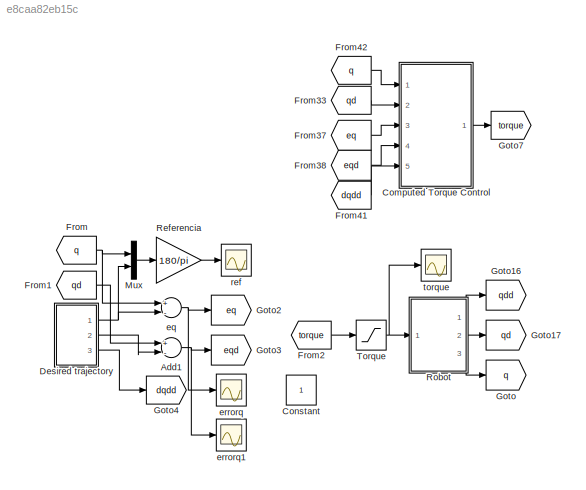
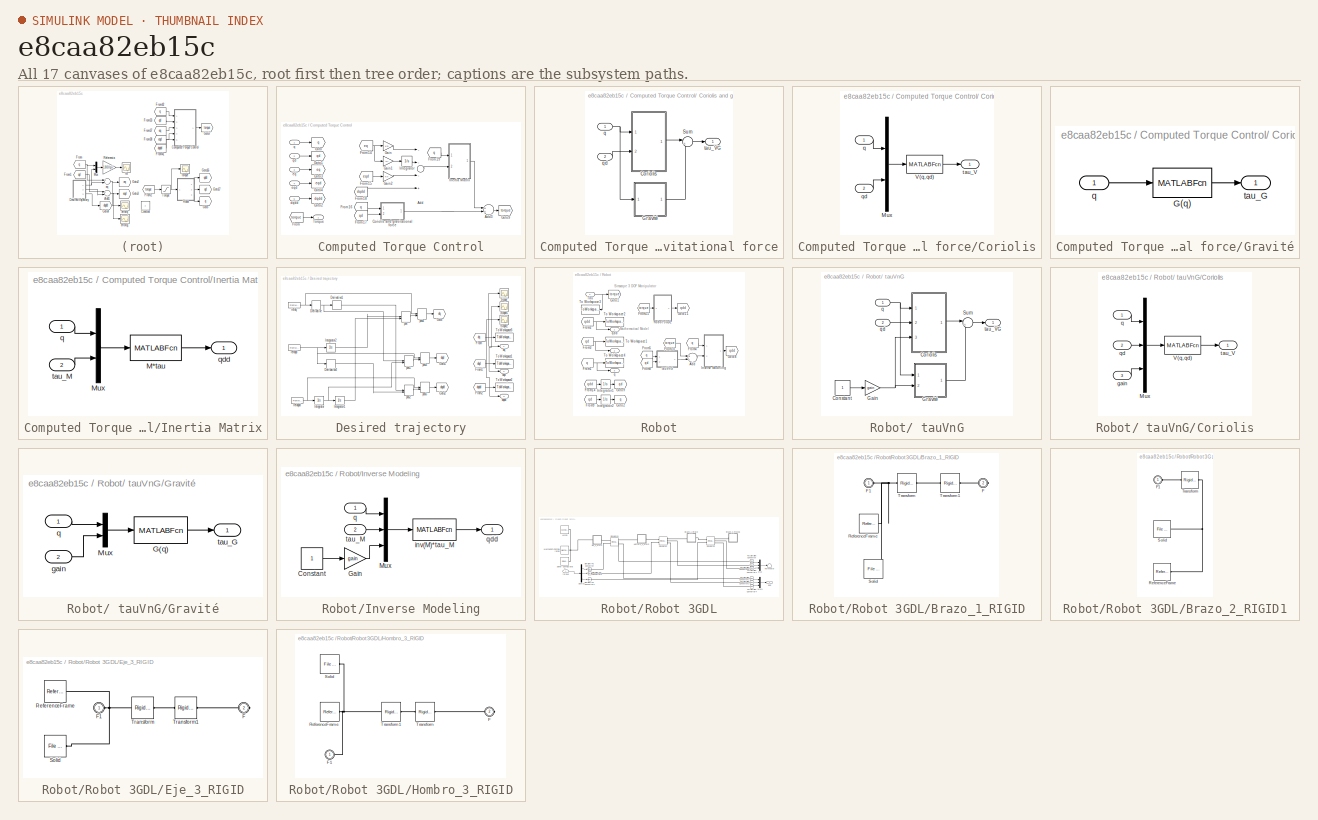
[diagram: thumbnail index - all 17 canvases of the model, root first then tree order]
MODEL slx_e8caa82eb15c
KIND model
CONFIG AbsTol = auto
CONFIG EnableMultiTasking = off
CONFIG FixedStep = Ts
CONFIG MaxStep = auto
CONFIG MinStep = auto
CONFIG RelTol = 1e-3
CONFIG SampleTimeConstraint = Unconstrained
CONFIG Solver = ode3
CONFIG SolverName = ode3
CONFIG StartTime = 0.0
CONFIG StopTime = Tsim
BLOCK [Sum] Add1
  InputSameDT = off
  Inputs = +-
  OutDataTypeStr = Inherit: Inherit via internal rule
  Ports = [2, 1]
  SaturateOnIntegerOverflow = off
BLOCK [SubSystem] Computed Torque Control
  Ports = [5, 1]
  RequestExecContextInheritance = off
BLOCK [SubSystem] Computed Torque Control/ Coriolis and gravitational force
  Ports = [2, 1]
  RequestExecContextInheritance = off
BLOCK [SubSystem] Computed Torque Control/ Coriolis and gravitational force/Coriolis
  Ports = [2, 1]
  RequestExecContextInheritance = off
BLOCK [Mux] Computed Torque Control/ Coriolis and gravitational force/Coriolis/Mux
  DisplayOption = bar
  Inputs = 2
  Ports = [2, 1]
BLOCK [MATLABFcn] Computed Torque Control/ Coriolis and gravitational force/Coriolis/V(q,qd)
  MATLABFcn = feval(Vname,u)
  Ports = [1, 1]
BLOCK [Inport] Computed Torque Control/ Coriolis and gravitational force/Coriolis/q
  IconDisplay = Port number
BLOCK [Inport] Computed Torque Control/ Coriolis and gravitational force/Coriolis/qd
  IconDisplay = Port number
  Port = 2
BLOCK [Outport] Computed Torque Control/ Coriolis and gravitational force/Coriolis/tau_V
  IconDisplay = Port number
  VectorParamsAs1DForOutWhenUnconnected = off
BLOCK [SubSystem] Computed Torque Control/ Coriolis and gravitational force/Gravité
  Ports = [1, 1]
  RequestExecContextInheritance = off
BLOCK [MATLABFcn] Computed Torque Control/ Coriolis and gravitational force/Gravité/G(q)
  MATLABFcn = feval(Gname,u)
  Ports = [1, 1]
BLOCK [Inport] Computed Torque Control/ Coriolis and gravitational force/Gravité/q
  IconDisplay = Port number
BLOCK [Outport] Computed Torque Control/ Coriolis and gravitational force/Gravité/tau_G
  IconDisplay = Port number
  VectorParamsAs1DForOutWhenUnconnected = off
BLOCK [Sum] Computed Torque Control/ Coriolis and gravitational force/Sum
  IconShape = round
  Inputs = |++
  Ports = [2, 1]
BLOCK [Inport] Computed Torque Control/ Coriolis and gravitational force/q
  IconDisplay = Port number
BLOCK [Inport] Computed Torque Control/ Coriolis and gravitational force/qd
  IconDisplay = Port number
  Port = 2
BLOCK [Outport] Computed Torque Control/ Coriolis and gravitational force/tau_VG
  IconDisplay = Port number
  VectorParamsAs1DForOutWhenUnconnected = off
BLOCK [Sum] Computed Torque Control/Add
  InputSameDT = off
  Inputs = ---+
  OutDataTypeStr = Inherit: Inherit via internal rule
  Ports = [4, 1]
  SaturateOnIntegerOverflow = off
BLOCK [Sum] Computed Torque Control/Add3
  InputSameDT = off
  OutDataTypeStr = Inherit: Inherit via internal rule
  Ports = [2, 1]
  SaturateOnIntegerOverflow = off
BLOCK [From] Computed Torque Control/From
  GotoTag = torque
BLOCK [From] Computed Torque Control/From14
  GotoTag = eq
BLOCK [From] Computed Torque Control/From15
  GotoTag = eqd
BLOCK [From] Computed Torque Control/From16
  GotoTag = q
BLOCK [From] Computed Torque Control/From17
  GotoTag = qd
BLOCK [From] Computed Torque Control/From18
  GotoTag = dqdd
BLOCK [From] Computed Torque Control/From19
  GotoTag = q
BLOCK [Gain] Computed Torque Control/Gain
  Gain = Kp
  OutDataTypeStr = Inherit: Inherit via internal rule
  ParamDataTypeStr = Inherit: Inherit via internal rule
  SaturateOnIntegerOverflow = off
BLOCK [Gain] Computed Torque Control/Gain1
  Gain = Ki
  OutDataTypeStr = Inherit: Inherit via internal rule
  ParamDataTypeStr = Inherit: Inherit via internal rule
  SaturateOnIntegerOverflow = off
BLOCK [Gain] Computed Torque Control/Gain2
  Gain = Kv
  OutDataTypeStr = Inherit: Inherit via internal rule
  ParamDataTypeStr = Inherit: Inherit via internal rule
  SaturateOnIntegerOverflow = off
BLOCK [Goto] Computed Torque Control/Goto
  GotoTag = q
BLOCK [Goto] Computed Torque Control/Goto1
  GotoTag = qd
BLOCK [Goto] Computed Torque Control/Goto2
  GotoTag = dqdd
BLOCK [Goto] Computed Torque Control/Goto3
  GotoTag = eq
BLOCK [Goto] Computed Torque Control/Goto4
  GotoTag = eqd
BLOCK [Goto] Computed Torque Control/Goto9
  GotoTag = torque
BLOCK [SubSystem] Computed Torque Control/Inertia Matrix
  Ports = [2, 1]
  RequestExecContextInheritance = off
BLOCK [MATLABFcn] Computed Torque Control/Inertia Matrix/M*tau
  MATLABFcn = feval(Mname,u)
  Ports = [1, 1]
BLOCK [Mux] Computed Torque Control/Inertia Matrix/Mux
  DisplayOption = bar
  Inputs = 2
  Ports = [2, 1]
BLOCK [Inport] Computed Torque Control/Inertia Matrix/q
  IconDisplay = Port number
BLOCK [Outport] Computed Torque Control/Inertia Matrix/qdd
  IconDisplay = Port number
  VectorParamsAs1DForOutWhenUnconnected = off
BLOCK [Inport] Computed Torque Control/Inertia Matrix/tau_M
  IconDisplay = Port number
  Port = 2
BLOCK [Integrator] Computed Torque Control/Integrator
  Ports = [1, 1]
BLOCK [Outport] Computed Torque Control/Torque
  IconDisplay = Port number
BLOCK [Inport] Computed Torque Control/dqdd
  IconDisplay = Port number
  Port = 5
BLOCK [Inport] Computed Torque Control/eq
  IconDisplay = Port number
  Port = 3
BLOCK [Inport] Computed Torque Control/eqd
  IconDisplay = Port number
  Port = 4
BLOCK [Inport] Computed Torque Control/q
  IconDisplay = Port number
BLOCK [Inport] Computed Torque Control/qd
  IconDisplay = Port number
  Port = 2
BLOCK [Constant] Constant
  IOType = siggen
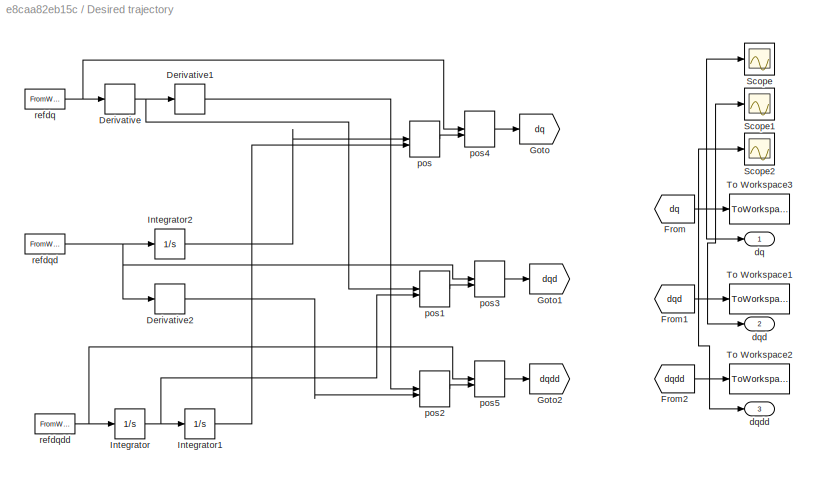
BLOCK [SubSystem] Desired trajectory
  Ports = [0, 3]
  RequestExecContextInheritance = off
BLOCK [Derivative] Desired trajectory/Derivative
BLOCK [Derivative] Desired trajectory/Derivative1
BLOCK [Derivative] Desired trajectory/Derivative2
BLOCK [From] Desired trajectory/From
  GotoTag = dq
BLOCK [From] Desired trajectory/From1
  GotoTag = dqd
BLOCK [From] Desired trajectory/From2
  GotoTag = dqdd
BLOCK [Goto] Desired trajectory/Goto
  GotoTag = dq
BLOCK [Goto] Desired trajectory/Goto1
  GotoTag = dqd
BLOCK [Goto] Desired trajectory/Goto2
  GotoTag = dqdd
BLOCK [Integrator] Desired trajectory/Integrator
  Ports = [1, 1]
BLOCK [Integrator] Desired trajectory/Integrator1
  InitialCondition = q0
  Ports = [1, 1]
BLOCK [Integrator] Desired trajectory/Integrator2
  InitialCondition = q0
  Ports = [1, 1]
BLOCK [Scope] Desired trajectory/Scope
  Floating = off
  NumInputPorts = 1
  Ports = [1]
  ScopeSpecificationString = Simulink.scopes.TimeScopeBlockCfg('CurrentConfiguration', extmgr.ConfigurationSet(extmgr.Configuration('Core','General UI',true),extmgr.Configuration('Core','Source UI',true),extmgr.Configuration('Sources','WiredSimulink',true,'DataLoggingVariableName','ScopeData1'),extmgr.Configuration('Visuals','Time Domain',true,'SerializedDisplays',{struct('MinYLimReal','-2.10343','MaxYLimReal','1.97721','YLab...<+1488ch>
BLOCK [Scope] Desired trajectory/Scope1
  Floating = off
  NumInputPorts = 1
  Ports = [1]
  ScopeSpecificationString = Simulink.scopes.TimeScopeBlockCfg('CurrentConfiguration', extmgr.ConfigurationSet(extmgr.Configuration('Core','General UI',true),extmgr.Configuration('Core','Source UI',true),extmgr.Configuration('Sources','WiredSimulink',true,'DataLoggingVariableName','ScopeData2'),extmgr.Configuration('Visuals','Time Domain',true,'SerializedDisplays',{struct('MinYLimReal','-1.97049','MaxYLimReal','1.47832','YLab...<+1471ch>
BLOCK [Scope] Desired trajectory/Scope2
  Floating = off
  NumInputPorts = 1
  Ports = [1]
  ScopeSpecificationString = Simulink.scopes.TimeScopeBlockCfg('CurrentConfiguration', extmgr.ConfigurationSet(extmgr.Configuration('Core','General UI',true),extmgr.Configuration('Core','Source UI',true),extmgr.Configuration('Sources','WiredSimulink',true,'DataLoggingVariableName','ScopeData3'),extmgr.Configuration('Visuals','Time Domain',true,'SerializedDisplays',{struct('MinYLimReal','-1.97049','MaxYLimReal','1.47832','YLab...<+1517ch>
BLOCK [ToWorkspace] Desired trajectory/To Workspace1
  FixptAsFi = on
  MaxDataPoints = inf
  Ports = [1]
  SampleTime = Tg
  VariableName = dqd
BLOCK [ToWorkspace] Desired trajectory/To Workspace2
  FixptAsFi = on
  MaxDataPoints = inf
  Ports = [1]
  SampleTime = Tg
  VariableName = dqdd
BLOCK [ToWorkspace] Desired trajectory/To Workspace3
  FixptAsFi = on
  MaxDataPoints = inf
  Ports = [1]
  SampleTime = Tg
  VariableName = dq
BLOCK [Outport] Desired trajectory/dq
  IconDisplay = Port number
  VectorParamsAs1DForOutWhenUnconnected = off
BLOCK [Outport] Desired trajectory/dqd
  IconDisplay = Port number
  Port = 2
  VectorParamsAs1DForOutWhenUnconnected = off
BLOCK [Outport] Desired trajectory/dqdd
  IconDisplay = Port number
  Port = 3
  VectorParamsAs1DForOutWhenUnconnected = off
BLOCK [ManualSwitch] Desired trajectory/pos
  CurrentSetting = 0
BLOCK [ManualSwitch] Desired trajectory/pos1
BLOCK [ManualSwitch] Desired trajectory/pos2
BLOCK [ManualSwitch] Desired trajectory/pos3
  CurrentSetting = 0
BLOCK [ManualSwitch] Desired trajectory/pos4
BLOCK [ManualSwitch] Desired trajectory/pos5
  CurrentSetting = 0
BLOCK [FromWorkspace] Desired trajectory/refdq
  SampleTime = 0
  VariableName = dq
  ZeroCross = on
BLOCK [FromWorkspace] Desired trajectory/refdqd
  SampleTime = 0
  VariableName = dqd
  ZeroCross = on
BLOCK [FromWorkspace] Desired trajectory/refdqdd
  SampleTime = 0
  VariableName = dqdd
  ZeroCross = on
BLOCK [From] From
  GotoTag = q
BLOCK [From] From1
  GotoTag = qd
BLOCK [From] From2
  GotoTag = torque
BLOCK [From] From33
  GotoTag = qd
BLOCK [From] From37
  GotoTag = eq
BLOCK [From] From38
  GotoTag = eqd
BLOCK [From] From41
  GotoTag = dqdd
BLOCK [From] From42
  GotoTag = q
BLOCK [Goto] Goto
  GotoTag = q
BLOCK [Goto] Goto16
  GotoTag = qdd
BLOCK [Goto] Goto17
  GotoTag = qd
BLOCK [Goto] Goto2
  GotoTag = eq
BLOCK [Goto] Goto3
  GotoTag = eqd
BLOCK [Goto] Goto4
  GotoTag = dqdd
BLOCK [Goto] Goto7
  GotoTag = torque
BLOCK [Mux] Mux
  DisplayOption = bar
  Inputs = 2
  Ports = [2, 1]
BLOCK [Gain] Referencia
  Gain = 180/pi
  OutDataTypeStr = Inherit: Inherit via internal rule
  ParamDataTypeStr = Inherit: Inherit via internal rule
  SaturateOnIntegerOverflow = off
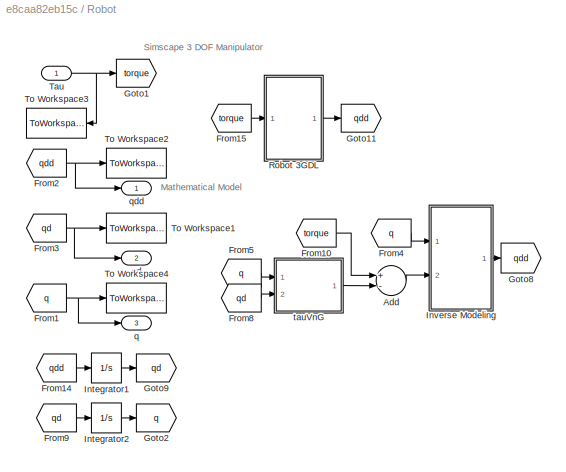
BLOCK [SubSystem] Robot
  Ports = [1, 3]
  RequestExecContextInheritance = off
BLOCK [SubSystem] Robot/ tauVnG
  Commented = on
  Ports = [2, 1]
  RequestExecContextInheritance = off
BLOCK [Constant] Robot/ tauVnG/Constant
BLOCK [SubSystem] Robot/ tauVnG/Coriolis
  Ports = [3, 1]
  RequestExecContextInheritance = off
BLOCK [Mux] Robot/ tauVnG/Coriolis/Mux
  DisplayOption = bar
  Inputs = 3
  Ports = [3, 1]
BLOCK [MATLABFcn] Robot/ tauVnG/Coriolis/V(q,qd)
  MATLABFcn = feval(Vname,u)
  Ports = [1, 1]
BLOCK [Inport] Robot/ tauVnG/Coriolis/gain
  IconDisplay = Port number
  Port = 3
BLOCK [Inport] Robot/ tauVnG/Coriolis/q
  IconDisplay = Port number
BLOCK [Inport] Robot/ tauVnG/Coriolis/qd
  IconDisplay = Port number
  Port = 2
BLOCK [Outport] Robot/ tauVnG/Coriolis/tau_V
  IconDisplay = Port number
  VectorParamsAs1DForOutWhenUnconnected = off
BLOCK [Gain] Robot/ tauVnG/Gain
  Gain = gain
  OutDataTypeStr = Inherit: Inherit via internal rule
  ParamDataTypeStr = Inherit: Inherit via internal rule
  SaturateOnIntegerOverflow = off
BLOCK [SubSystem] Robot/ tauVnG/Gravité
  Ports = [2, 1]
  RequestExecContextInheritance = off
BLOCK [MATLABFcn] Robot/ tauVnG/Gravité/G(q)
  MATLABFcn = feval(Gname,u)
  Ports = [1, 1]
BLOCK [Mux] Robot/ tauVnG/Gravité/Mux
  DisplayOption = bar
  Inputs = 2
  Ports = [2, 1]
BLOCK [Inport] Robot/ tauVnG/Gravité/gain
  IconDisplay = Port number
  Port = 2
BLOCK [Inport] Robot/ tauVnG/Gravité/q
  IconDisplay = Port number
BLOCK [Outport] Robot/ tauVnG/Gravité/tau_G
  IconDisplay = Port number
  VectorParamsAs1DForOutWhenUnconnected = off
BLOCK [Sum] Robot/ tauVnG/Sum
  IconShape = round
  Inputs = |++
  Ports = [2, 1]
BLOCK [Inport] Robot/ tauVnG/q
  IconDisplay = Port number
BLOCK [Inport] Robot/ tauVnG/qd
  IconDisplay = Port number
  Port = 2
BLOCK [Outport] Robot/ tauVnG/tau_VG
  IconDisplay = Port number
  VectorParamsAs1DForOutWhenUnconnected = off
BLOCK [Sum] Robot/Add
  Commented = on
  InputSameDT = off
  Inputs = +-
  OutDataTypeStr = Inherit: Inherit via internal rule
  Ports = [2, 1]
  SaturateOnIntegerOverflow = off
BLOCK [From] Robot/From1
  GotoTag = q
BLOCK [From] Robot/From10
  Commented = on
  GotoTag = torque
BLOCK [From] Robot/From14
  GotoTag = qdd
BLOCK [From] Robot/From15
  GotoTag = torque
BLOCK [From] Robot/From2
  GotoTag = qdd
BLOCK [From] Robot/From3
  GotoTag = qd
BLOCK [From] Robot/From4
  Commented = on
  GotoTag = q
BLOCK [From] Robot/From5
  Commented = on
  GotoTag = q
BLOCK [From] Robot/From8
  Commented = on
  GotoTag = qd
BLOCK [From] Robot/From9
  GotoTag = qd
BLOCK [Goto] Robot/Goto1
  GotoTag = torque
BLOCK [Goto] Robot/Goto11
  GotoTag = qdd
BLOCK [Goto] Robot/Goto2
  GotoTag = q
BLOCK [Goto] Robot/Goto8
  Commented = on
  GotoTag = qdd
BLOCK [Goto] Robot/Goto9
  GotoTag = qd
BLOCK [Integrator] Robot/Integrator1
  InitialCondition = qd0
  Ports = [1, 1]
BLOCK [Integrator] Robot/Integrator2
  InitialCondition = q01
  Ports = [1, 1]
BLOCK [SubSystem] Robot/Inverse Modeling
  Commented = on
  Ports = [2, 1]
  RequestExecContextInheritance = off
BLOCK [Constant] Robot/Inverse Modeling/Constant
BLOCK [Gain] Robot/Inverse Modeling/Gain
  Gain = gain
  OutDataTypeStr = Inherit: Inherit via internal rule
  ParamDataTypeStr = Inherit: Inherit via internal rule
  SaturateOnIntegerOverflow = off
BLOCK [Mux] Robot/Inverse Modeling/Mux
  DisplayOption = bar
  Inputs = 3
  Ports = [3, 1]
BLOCK [MATLABFcn] Robot/Inverse Modeling/inv(M)*tau_M
  MATLABFcn = feval(IMname,u)
  Ports = [1, 1]
BLOCK [Inport] Robot/Inverse Modeling/q
  IconDisplay = Port number
BLOCK [Outport] Robot/Inverse Modeling/qdd
  IconDisplay = Port number
  VectorParamsAs1DForOutWhenUnconnected = off
BLOCK [Inport] Robot/Inverse Modeling/tau_M
  IconDisplay = Port number
  Port = 2
BLOCK [SubSystem] Robot/Robot 3GDL
  Ports = [1, 1]
  RequestExecContextInheritance = off
BLOCK [SubSystem] Robot/Robot 3GDL/Brazo_1_RIGID
  Ports = [0, 0, 0, 0, 0, 1, 1]
  RequestExecContextInheritance = off
BLOCK [PMIOPort] Robot/Robot 3GDL/Brazo_1_RIGID/F
  Port = 2
  Side = Right
BLOCK [PMIOPort] Robot/Robot 3GDL/Brazo_1_RIGID/F1
  Side = Left
BLOCK [Reference] Robot/Robot 3GDL/Brazo_1_RIGID/ReferenceFrame  REF=sm_lib/Frames and
Transforms/Reference
Frame
  Ports = [0, 0, 0, 0, 0, 0, 1]
  SourceBlock = sm_lib/Frames and\nTransforms/Reference\nFrame
  SourceProductBaseCode = MS
  SourceProductName = Simscape Multibody
  SourceType = Reference\nFrame
BLOCK [Reference] Robot/Robot 3GDL/Brazo_1_RIGID/Solid  REF=sm_lib/Body Elements/File Solid
  Ports = [0, 0, 0, 0, 0, 0, 1]
  SourceBlock = sm_lib/Body Elements/File Solid
  SourceProductBaseCode = MS
  SourceProductName = Simscape Multibody
  SourceType = File Solid
BLOCK [Reference] Robot/Robot 3GDL/Brazo_1_RIGID/Transform  REF=sm_lib/Frames and
Transforms/Rigid
Transform
  Ports = [0, 0, 0, 0, 0, 1, 1]
  SourceBlock = sm_lib/Frames and\nTransforms/Rigid\nTransform
  SourceProductBaseCode = MS
  SourceProductName = Simscape Multibody
  SourceType = Rigid\nTransform
BLOCK [Reference] Robot/Robot 3GDL/Brazo_1_RIGID/Transform1  REF=sm_lib/Frames and
Transforms/Rigid
Transform
  Ports = [0, 0, 0, 0, 0, 1, 1]
  SourceBlock = sm_lib/Frames and\nTransforms/Rigid\nTransform
  SourceProductBaseCode = MS
  SourceProductName = Simscape Multibody
  SourceType = Rigid\nTransform
BLOCK [SubSystem] Robot/Robot 3GDL/Brazo_2_RIGID1
  Ports = [0, 0, 0, 0, 0, 1]
  RequestExecContextInheritance = off
BLOCK [PMIOPort] Robot/Robot 3GDL/Brazo_2_RIGID1/F1
  Side = Left
BLOCK [Reference] Robot/Robot 3GDL/Brazo_2_RIGID1/ReferenceFrame  REF=sm_lib/Frames and
Transforms/Reference
Frame
  Ports = [0, 0, 0, 0, 0, 0, 1]
  SourceBlock = sm_lib/Frames and\nTransforms/Reference\nFrame
  SourceProductBaseCode = MS
  SourceProductName = Simscape Multibody
  SourceType = Reference\nFrame
BLOCK [Reference] Robot/Robot 3GDL/Brazo_2_RIGID1/Solid  REF=sm_lib/Body Elements/File Solid
  Ports = [0, 0, 0, 0, 0, 0, 1]
  SourceBlock = sm_lib/Body Elements/File Solid
  SourceProductBaseCode = MS
  SourceProductName = Simscape Multibody
  SourceType = File Solid
BLOCK [Reference] Robot/Robot 3GDL/Brazo_2_RIGID1/Transform  REF=sm_lib/Frames and
Transforms/Rigid
Transform
  Ports = [0, 0, 0, 0, 0, 1, 1]
  SourceBlock = sm_lib/Frames and\nTransforms/Rigid\nTransform
  SourceProductBaseCode = MS
  SourceProductName = Simscape Multibody
  SourceType = Rigid\nTransform
BLOCK [Demux] Robot/Robot 3GDL/Demux
  DisplayOption = bar
  Outputs = 3
  Ports = [1, 3]
BLOCK [SubSystem] Robot/Robot 3GDL/Eje_3_RIGID
  Ports = [0, 0, 0, 0, 0, 1, 1]
  RequestExecContextInheritance = off
BLOCK [PMIOPort] Robot/Robot 3GDL/Eje_3_RIGID/F
  Port = 2
  Side = Right
BLOCK [PMIOPort] Robot/Robot 3GDL/Eje_3_RIGID/F1
  Side = Left
BLOCK [Reference] Robot/Robot 3GDL/Eje_3_RIGID/ReferenceFrame  REF=sm_lib/Frames and
Transforms/Reference
Frame
  Ports = [0, 0, 0, 0, 0, 0, 1]
  SourceBlock = sm_lib/Frames and\nTransforms/Reference\nFrame
  SourceProductBaseCode = MS
  SourceProductName = Simscape Multibody
  SourceType = Reference\nFrame
BLOCK [Reference] Robot/Robot 3GDL/Eje_3_RIGID/Solid  REF=sm_lib/Body Elements/File Solid
  Ports = [0, 0, 0, 0, 0, 0, 1]
  SourceBlock = sm_lib/Body Elements/File Solid
  SourceProductBaseCode = MS
  SourceProductName = Simscape Multibody
  SourceType = File Solid
BLOCK [Reference] Robot/Robot 3GDL/Eje_3_RIGID/Transform  REF=sm_lib/Frames and
Transforms/Rigid
Transform
  Ports = [0, 0, 0, 0, 0, 1, 1]
  SourceBlock = sm_lib/Frames and\nTransforms/Rigid\nTransform
  SourceProductBaseCode = MS
  SourceProductName = Simscape Multibody
  SourceType = Rigid\nTransform
BLOCK [Reference] Robot/Robot 3GDL/Eje_3_RIGID/Transform1  REF=sm_lib/Frames and
Transforms/Rigid
Transform
  Ports = [0, 0, 0, 0, 0, 1, 1]
  SourceBlock = sm_lib/Frames and\nTransforms/Rigid\nTransform
  SourceProductBaseCode = MS
  SourceProductName = Simscape Multibody
  SourceType = Rigid\nTransform
BLOCK [SubSystem] Robot/Robot 3GDL/Hombro_3_RIGID
  Ports = [0, 0, 0, 0, 0, 1, 1]
  RequestExecContextInheritance = off
BLOCK [PMIOPort] Robot/Robot 3GDL/Hombro_3_RIGID/F
  Port = 2
  Side = Right
BLOCK [PMIOPort] Robot/Robot 3GDL/Hombro_3_RIGID/F1
  Side = Left
BLOCK [Reference] Robot/Robot 3GDL/Hombro_3_RIGID/ReferenceFrame  REF=sm_lib/Frames and
Transforms/Reference
Frame
  Ports = [0, 0, 0, 0, 0, 0, 1]
  SourceBlock = sm_lib/Frames and\nTransforms/Reference\nFrame
  SourceProductBaseCode = MS
  SourceProductName = Simscape Multibody
  SourceType = Reference\nFrame
BLOCK [Reference] Robot/Robot 3GDL/Hombro_3_RIGID/Solid  REF=sm_lib/Body Elements/File Solid
  Ports = [0, 0, 0, 0, 0, 0, 1]
  SourceBlock = sm_lib/Body Elements/File Solid
  SourceProductBaseCode = MS
  SourceProductName = Simscape Multibody
  SourceType = File Solid
BLOCK [Reference] Robot/Robot 3GDL/Hombro_3_RIGID/Transform  REF=sm_lib/Frames and
Transforms/Rigid
Transform
  Ports = [0, 0, 0, 0, 0, 1, 1]
  SourceBlock = sm_lib/Frames and\nTransforms/Rigid\nTransform
  SourceProductBaseCode = MS
  SourceProductName = Simscape Multibody
  SourceType = Rigid\nTransform
BLOCK [Reference] Robot/Robot 3GDL/Hombro_3_RIGID/Transform1  REF=sm_lib/Frames and
Transforms/Rigid
Transform
  Ports = [0, 0, 0, 0, 0, 1, 1]
  SourceBlock = sm_lib/Frames and\nTransforms/Rigid\nTransform
  SourceProductBaseCode = MS
  SourceProductName = Simscape Multibody
  SourceType = Rigid\nTransform
BLOCK [Reference] Robot/Robot 3GDL/MechanismConfiguration  REF=sm_lib/Utilities/Mechanism
Configuration
  Ports = [0, 0, 0, 0, 0, 0, 1]
  SourceBlock = sm_lib/Utilities/Mechanism\nConfiguration
  SourceProductBaseCode = MS
  SourceProductName = Simscape Multibody
  SourceType = Mechanism\nConfiguration
BLOCK [Mux] Robot/Robot 3GDL/Mux
  DisplayOption = bar
  Inputs = 3
  Ports = [3, 1]
BLOCK [Mux] Robot/Robot 3GDL/Mux1
  DisplayOption = bar
  Inputs = 3
  Ports = [3, 1]
BLOCK [Reference] Robot/Robot 3GDL/PS-Simulink Converter  REF=nesl_utility/PS-Simulink
Converter
  Ports = [0, 1, 0, 0, 0, 1]
  SourceBlock = nesl_utility/PS-Simulink\nConverter
  SourceProductBaseCode = SS
  SourceProductName = Simscape
  SourceType = PS-Simulink\nConverter
BLOCK [Reference] Robot/Robot 3GDL/PS-Simulink Converter1  REF=nesl_utility/PS-Simulink
Converter
  Ports = [0, 1, 0, 0, 0, 1]
  SourceBlock = nesl_utility/PS-Simulink\nConverter
  SourceProductBaseCode = SS
  SourceProductName = Simscape
  SourceType = PS-Simulink\nConverter
BLOCK [Reference] Robot/Robot 3GDL/PS-Simulink Converter2  REF=nesl_utility/PS-Simulink
Converter
  Ports = [0, 1, 0, 0, 0, 1]
  SourceBlock = nesl_utility/PS-Simulink\nConverter
  SourceProductBaseCode = SS
  SourceProductName = Simscape
  SourceType = PS-Simulink\nConverter
BLOCK [Reference] Robot/Robot 3GDL/PS-Simulink Converter3  REF=nesl_utility/PS-Simulink
Converter
  Ports = [0, 1, 0, 0, 0, 1]
  SourceBlock = nesl_utility/PS-Simulink\nConverter
  SourceProductBaseCode = SS
  SourceProductName = Simscape
  SourceType = PS-Simulink\nConverter
BLOCK [Reference] Robot/Robot 3GDL/PS-Simulink Converter4  REF=nesl_utility/PS-Simulink
Converter
  Ports = [0, 1, 0, 0, 0, 1]
  SourceBlock = nesl_utility/PS-Simulink\nConverter
  SourceProductBaseCode = SS
  SourceProductName = Simscape
  SourceType = PS-Simulink\nConverter
BLOCK [Reference] Robot/Robot 3GDL/PS-Simulink Converter5  REF=nesl_utility/PS-Simulink
Converter
  Ports = [0, 1, 0, 0, 0, 1]
  SourceBlock = nesl_utility/PS-Simulink\nConverter
  SourceProductBaseCode = SS
  SourceProductName = Simscape
  SourceType = PS-Simulink\nConverter
BLOCK [Reference] Robot/Robot 3GDL/Revolute1  REF=sm_lib/Joints/Revolute Joint
  Ports = [0, 0, 0, 0, 0, 2, 3]
  SourceBlock = sm_lib/Joints/Revolute Joint
  SourceProductBaseCode = MS
  SourceProductName = Simscape Multibody
  SourceType = Revolute Joint
BLOCK [Reference] Robot/Robot 3GDL/Revolute2  REF=sm_lib/Joints/Revolute Joint
  Ports = [0, 0, 0, 0, 0, 2, 3]
  SourceBlock = sm_lib/Joints/Revolute Joint
  SourceProductBaseCode = MS
  SourceProductName = Simscape Multibody
  SourceType = Revolute Joint
BLOCK [Reference] Robot/Robot 3GDL/Revolute3  REF=sm_lib/Joints/Revolute Joint
  Ports = [0, 0, 0, 0, 0, 2, 3]
  SourceBlock = sm_lib/Joints/Revolute Joint
  SourceProductBaseCode = MS
  SourceProductName = Simscape Multibody
  SourceType = Revolute Joint
BLOCK [Reference] Robot/Robot 3GDL/Simulink-PS Converter  REF=nesl_utility/Simulink-PS
Converter
  Ports = [1, 0, 0, 0, 0, 0, 1]
  SourceBlock = nesl_utility/Simulink-PS\nConverter
  SourceProductBaseCode = SS
  SourceProductName = Simscape
  SourceType = Simulink-PS\nConverter
BLOCK [Reference] Robot/Robot 3GDL/Simulink-PS Converter1  REF=nesl_utility/Simulink-PS
Converter
  Ports = [1, 0, 0, 0, 0, 0, 1]
  SourceBlock = nesl_utility/Simulink-PS\nConverter
  SourceProductBaseCode = SS
  SourceProductName = Simscape
  SourceType = Simulink-PS\nConverter
BLOCK [Reference] Robot/Robot 3GDL/Simulink-PS Converter2  REF=nesl_utility/Simulink-PS
Converter
  Ports = [1, 0, 0, 0, 0, 0, 1]
  SourceBlock = nesl_utility/Simulink-PS\nConverter
  SourceProductBaseCode = SS
  SourceProductName = Simscape
  SourceType = Simulink-PS\nConverter
BLOCK [Reference] Robot/Robot 3GDL/Solver Configuration  REF=nesl_utility/Solver
Configuration
  Ports = [0, 0, 0, 0, 0, 0, 1]
  SourceBlock = nesl_utility/Solver\nConfiguration
  SourceProductBaseCode = SS
  SourceProductName = Simscape
  SourceType = Solver\nConfiguration
BLOCK [Terminator] Robot/Robot 3GDL/Terminator
BLOCK [Reference] Robot/Robot 3GDL/World  REF=sm_lib/Frames and
Transforms/World Frame
  Ports = [0, 0, 0, 0, 0, 0, 1]
  SourceBlock = sm_lib/Frames and\nTransforms/World Frame
  SourceProductBaseCode = MS
  SourceProductName = Simscape Multibody
  SourceType = World Frame
BLOCK [Outport] Robot/Robot 3GDL/qdd
  IconDisplay = Port number
  VectorParamsAs1DForOutWhenUnconnected = off
BLOCK [Inport] Robot/Robot 3GDL/torque
  IconDisplay = Port number
BLOCK [Inport] Robot/Tau
  IconDisplay = Port number
BLOCK [ToWorkspace] Robot/To Workspace1
  FixptAsFi = on
  MaxDataPoints = inf
  Ports = [1]
  SampleTime = Tg
  VariableName = qd
BLOCK [ToWorkspace] Robot/To Workspace2
  FixptAsFi = on
  MaxDataPoints = inf
  Ports = [1]
  SampleTime = Tg
  VariableName = qdd
BLOCK [ToWorkspace] Robot/To Workspace3
  FixptAsFi = on
  MaxDataPoints = inf
  Ports = [1]
  SampleTime = Tg
  VariableName = torque
BLOCK [ToWorkspace] Robot/To Workspace4
  FixptAsFi = on
  MaxDataPoints = inf
  Ports = [1]
  SampleTime = Tg
  VariableName = q
BLOCK [Outport] Robot/q
  IconDisplay = Port number
  Port = 3
  VectorParamsAs1DForOutWhenUnconnected = off
BLOCK [Outport] Robot/qd
  IconDisplay = Port number
  Port = 2
  VectorParamsAs1DForOutWhenUnconnected = off
BLOCK [Outport] Robot/qdd
  IconDisplay = Port number
  VectorParamsAs1DForOutWhenUnconnected = off
BLOCK [Saturate] Torque
  InputPortMap = u0
  LowerLimit = limD
  Ports = [1, 1]
  UpperLimit = limU
BLOCK [Sum] eq
  InputSameDT = off
  Inputs = +-
  OutDataTypeStr = Inherit: Inherit via internal rule
  Ports = [2, 1]
  SaturateOnIntegerOverflow = off
BLOCK [Scope] errorq
  Floating = off
  NumInputPorts = 1
  Ports = [1]
  ScopeSpecificationString = Simulink.scopes.TimeScopeBlockCfg('CurrentConfiguration', extmgr.ConfigurationSet(extmgr.Configuration('Core','General UI',true),extmgr.Configuration('Core','Source UI',true),extmgr.Configuration('Sources','WiredSimulink',true,'DataLoggingVariableName','ScopeData1','SampleTime','Tg'),extmgr.Configuration('Visuals','Time Domain',true,'SerializedDisplays',{struct('MinYLimReal','-0.00512','MaxYLimRea...<+1674ch>
BLOCK [Scope] errorq1
  Floating = off
  NumInputPorts = 1
  Ports = [1]
  ScopeSpecificationString = Simulink.scopes.TimeScopeBlockCfg('CurrentConfiguration', extmgr.ConfigurationSet(extmgr.Configuration('Core','General UI',true),extmgr.Configuration('Core','Source UI',true),extmgr.Configuration('Sources','WiredSimulink',true,'DataLoggingVariableName','ScopeData3','SampleTime','Tg'),extmgr.Configuration('Visuals','Time Domain',true,'SerializedDisplays',{struct('MinYLimReal','-2.2847','MaxYLimReal...<+1684ch>
BLOCK [Scope] ref
  Floating = off
  NumInputPorts = 1
  Ports = [1]
  ScopeSpecificationString = Simulink.scopes.TimeScopeBlockCfg('CurrentConfiguration', extmgr.ConfigurationSet(extmgr.Configuration('Core','General UI',true),extmgr.Configuration('Core','Source UI',true),extmgr.Configuration('Sources','WiredSimulink',true,'DataLoggingVariableName','ScopeData3','SampleTime','Tg'),extmgr.Configuration('Visuals','Time Domain',true,'SerializedDisplays',{struct('MinYLimReal','-42.94478','MaxYLimRe...<+1669ch>
BLOCK [Scope] torque
  Floating = off
  NumInputPorts = 1
  Ports = [1]
  ScopeSpecificationString = Simulink.scopes.TimeScopeBlockCfg('CurrentConfiguration', extmgr.ConfigurationSet(extmgr.Configuration('Core','General UI',true),extmgr.Configuration('Core','Source UI',true),extmgr.Configuration('Sources','WiredSimulink',true,'DataLoggingVariableName','ScopeData1','SampleTime','Tg'),extmgr.Configuration('Visuals','Time Domain',true,'SerializedDisplays',{struct('MinYLimReal','-26.9567','MaxYLimRea...<+1608ch>
ANNOTATION Robot: Mathematical Model
ANNOTATION Robot: Simscape 3 DOF Manipulator
NET Add1:1 -> Goto3:1, errorq1:1
LINE Computed Torque Control/ Coriolis and gravitational force/Coriolis/Mux:1 -> Computed Torque Control/ Coriolis and gravitational force/Coriolis/V(q,qd):1
LINE Computed Torque Control/ Coriolis and gravitational force/Coriolis/V(q,qd):1 -> Computed Torque Control/ Coriolis and gravitational force/Coriolis/tau_V:1
LINE Computed Torque Control/ Coriolis and gravitational force/Coriolis/q:1 -> Computed Torque Control/ Coriolis and gravitational force/Coriolis/Mux:1
LINE Computed Torque Control/ Coriolis and gravitational force/Coriolis/qd:1 -> Computed Torque Control/ Coriolis and gravitational force/Coriolis/Mux:2
LINE Computed Torque Control/ Coriolis and gravitational force/Coriolis:1 -> Computed Torque Control/ Coriolis and gravitational force/Sum:1
LINE Computed Torque Control/ Coriolis and gravitational force/Gravité/G(q):1 -> Computed Torque Control/ Coriolis and gravitational force/Gravité/tau_G:1
LINE Computed Torque Control/ Coriolis and gravitational force/Gravité/q:1 -> Computed Torque Control/ Coriolis and gravitational force/Gravité/G(q):1
LINE Computed Torque Control/ Coriolis and gravitational force/Gravité:1 -> Computed Torque Control/ Coriolis and gravitational force/Sum:2
LINE Computed Torque Control/ Coriolis and gravitational force/Sum:1 -> Computed Torque Control/ Coriolis and gravitational force/tau_VG:1
NET Computed Torque Control/ Coriolis and gravitational force/q:1 -> Computed Torque Control/ Coriolis and gravitational force/Coriolis:1, Computed Torque Control/ Coriolis and gravitational force/Gravité:1
LINE Computed Torque Control/ Coriolis and gravitational force/qd:1 -> Computed Torque Control/ Coriolis and gravitational force/Coriolis:2
LINE Computed Torque Control/ Coriolis and gravitational force:1 -> Computed Torque Control/Add3:2
LINE Computed Torque Control/Add3:1 -> Computed Torque Control/Goto9:1
LINE Computed Torque Control/Add:1 -> Computed Torque Control/Inertia Matrix:2
NET Computed Torque Control/From14:1 -> Computed Torque Control/Gain1:1, Computed Torque Control/Gain:1
LINE Computed Torque Control/From15:1 -> Computed Torque Control/Gain2:1
LINE Computed Torque Control/From16:1 -> Computed Torque Control/ Coriolis and gravitational force:1
LINE Computed Torque Control/From17:1 -> Computed Torque Control/ Coriolis and gravitational force:2
LINE Computed Torque Control/From18:1 -> Computed Torque Control/Add:4
LINE Computed Torque Control/From19:1 -> Computed Torque Control/Inertia Matrix:1
LINE Computed Torque Control/From:1 -> Computed Torque Control/Torque:1
LINE Computed Torque Control/Gain1:1 -> Computed Torque Control/Integrator:1
LINE Computed Torque Control/Gain2:1 -> Computed Torque Control/Add:3
LINE Computed Torque Control/Gain:1 -> Computed Torque Control/Add:1
LINE Computed Torque Control/Inertia Matrix/M*tau:1 -> Computed Torque Control/Inertia Matrix/qdd:1
LINE Computed Torque Control/Inertia Matrix/Mux:1 -> Computed Torque Control/Inertia Matrix/M*tau:1
LINE Computed Torque Control/Inertia Matrix/q:1 -> Computed Torque Control/Inertia Matrix/Mux:1
LINE Computed Torque Control/Inertia Matrix/tau_M:1 -> Computed Torque Control/Inertia Matrix/Mux:2
LINE Computed Torque Control/Inertia Matrix:1 -> Computed Torque Control/Add3:1
LINE Computed Torque Control/Integrator:1 -> Computed Torque Control/Add:2
LINE Computed Torque Control/dqdd:1 -> Computed Torque Control/Goto2:1
LINE Computed Torque Control/eq:1 -> Computed Torque Control/Goto3:1
LINE Computed Torque Control/eqd:1 -> Computed Torque Control/Goto4:1
LINE Computed Torque Control/q:1 -> Computed Torque Control/Goto:1
LINE Computed Torque Control/qd:1 -> Computed Torque Control/Goto1:1
LINE Computed Torque Control:1 -> Goto7:1
LINE Desired trajectory/Derivative1:1 -> Desired trajectory/pos2:1
LINE Desired trajectory/Derivative2:1 -> Desired trajectory/pos2:2
NET Desired trajectory/Derivative:1 -> Desired trajectory/Derivative1:1, Desired trajectory/pos1:1
NET Desired trajectory/From1:1 -> Desired trajectory/Scope1:1, Desired trajectory/To Workspace1:1, Desired trajectory/dqd:1
NET Desired trajectory/From2:1 -> Desired trajectory/Scope2:1, Desired trajectory/To Workspace2:1, Desired trajectory/dqdd:1
NET Desired trajectory/From:1 -> Desired trajectory/Scope:1, Desired trajectory/To Workspace3:1, Desired trajectory/dq:1
LINE Desired trajectory/Integrator1:1 -> Desired trajectory/pos:2
LINE Desired trajectory/Integrator2:1 -> Desired trajectory/pos:1
NET Desired trajectory/Integrator:1 -> Desired trajectory/Integrator1:1, Desired trajectory/pos1:2
LINE Desired trajectory/pos1:1 -> Desired trajectory/pos3:2
LINE Desired trajectory/pos2:1 -> Desired trajectory/pos5:2
LINE Desired trajectory/pos3:1 -> Desired trajectory/Goto1:1
LINE Desired trajectory/pos4:1 -> Desired trajectory/Goto:1
LINE Desired trajectory/pos5:1 -> Desired trajectory/Goto2:1
LINE Desired trajectory/pos:1 -> Desired trajectory/pos4:2
NET Desired trajectory/refdq:1 -> Desired trajectory/Derivative:1, Desired trajectory/pos4:1
NET Desired trajectory/refdqd:1 -> Desired trajectory/Derivative2:1, Desired trajectory/Integrator2:1, Desired trajectory/pos3:1
NET Desired trajectory/refdqdd:1 -> Desired trajectory/Integrator:1, Desired trajectory/pos5:1
NET Desired trajectory:1 -> Mux:2, eq:2
LINE Desired trajectory:2 -> Add1:2
LINE Desired trajectory:3 -> Goto4:1
LINE From1:1 -> Add1:1
LINE From2:1 -> Torque:1
LINE From33:1 -> Computed Torque Control:2
LINE From37:1 -> Computed Torque Control:3
LINE From38:1 -> Computed Torque Control:4
LINE From41:1 -> Computed Torque Control:5
LINE From42:1 -> Computed Torque Control:1
NET From:1 -> Mux:1, eq:1
LINE Mux:1 -> Referencia:1
LINE Referencia:1 -> ref:1
LINE Robot/ tauVnG/Constant:1 -> Robot/ tauVnG/Gain:1
LINE Robot/ tauVnG/Coriolis/Mux:1 -> Robot/ tauVnG/Coriolis/V(q,qd):1
LINE Robot/ tauVnG/Coriolis/V(q,qd):1 -> Robot/ tauVnG/Coriolis/tau_V:1
LINE Robot/ tauVnG/Coriolis/gain:1 -> Robot/ tauVnG/Coriolis/Mux:3
LINE Robot/ tauVnG/Coriolis/q:1 -> Robot/ tauVnG/Coriolis/Mux:1
LINE Robot/ tauVnG/Coriolis/qd:1 -> Robot/ tauVnG/Coriolis/Mux:2
LINE Robot/ tauVnG/Coriolis:1 -> Robot/ tauVnG/Sum:1
NET Robot/ tauVnG/Gain:1 -> Robot/ tauVnG/Coriolis:3, Robot/ tauVnG/Gravité:2
LINE Robot/ tauVnG/Gravité/G(q):1 -> Robot/ tauVnG/Gravité/tau_G:1
LINE Robot/ tauVnG/Gravité/Mux:1 -> Robot/ tauVnG/Gravité/G(q):1
LINE Robot/ tauVnG/Gravité/gain:1 -> Robot/ tauVnG/Gravité/Mux:2
LINE Robot/ tauVnG/Gravité/q:1 -> Robot/ tauVnG/Gravité/Mux:1
LINE Robot/ tauVnG/Gravité:1 -> Robot/ tauVnG/Sum:2
LINE Robot/ tauVnG/Sum:1 -> Robot/ tauVnG/tau_VG:1
NET Robot/ tauVnG/q:1 -> Robot/ tauVnG/Coriolis:1, Robot/ tauVnG/Gravité:1
LINE Robot/ tauVnG/qd:1 -> Robot/ tauVnG/Coriolis:2
LINE Robot/ tauVnG:1 -> Robot/Add:2
LINE Robot/Add:1 -> Robot/Inverse Modeling:2
LINE Robot/From10:1 -> Robot/Add:1
LINE Robot/From14:1 -> Robot/Integrator1:1
LINE Robot/From15:1 -> Robot/Robot 3GDL:1
NET Robot/From1:1 -> Robot/To Workspace4:1, Robot/q:1
NET Robot/From2:1 -> Robot/To Workspace2:1, Robot/qdd:1
NET Robot/From3:1 -> Robot/To Workspace1:1, Robot/qd:1
LINE Robot/From4:1 -> Robot/Inverse Modeling:1
LINE Robot/From5:1 -> Robot/ tauVnG:1
LINE Robot/From8:1 -> Robot/ tauVnG:2
LINE Robot/From9:1 -> Robot/Integrator2:1
LINE Robot/Integrator1:1 -> Robot/Goto9:1
LINE Robot/Integrator2:1 -> Robot/Goto2:1
LINE Robot/Inverse Modeling/Constant:1 -> Robot/Inverse Modeling/Gain:1
LINE Robot/Inverse Modeling/Gain:1 -> Robot/Inverse Modeling/Mux:3
LINE Robot/Inverse Modeling/Mux:1 -> Robot/Inverse Modeling/inv(M)*tau_M:1
LINE Robot/Inverse Modeling/inv(M)*tau_M:1 -> Robot/Inverse Modeling/qdd:1
LINE Robot/Inverse Modeling/q:1 -> Robot/Inverse Modeling/Mux:1
LINE Robot/Inverse Modeling/tau_M:1 -> Robot/Inverse Modeling/Mux:2
LINE Robot/Inverse Modeling:1 -> Robot/Goto8:1
LINE Robot/Robot 3GDL/Demux:1 -> Robot/Robot 3GDL/Simulink-PS Converter:1
LINE Robot/Robot 3GDL/Demux:2 -> Robot/Robot 3GDL/Simulink-PS Converter1:1
LINE Robot/Robot 3GDL/Demux:3 -> Robot/Robot 3GDL/Simulink-PS Converter2:1
LINE Robot/Robot 3GDL/Mux1:1 -> Robot/Robot 3GDL/qdd:1
LINE Robot/Robot 3GDL/Mux:1 -> Robot/Robot 3GDL/Terminator:1
LINE Robot/Robot 3GDL/PS-Simulink Converter1:1 -> Robot/Robot 3GDL/Mux:2
LINE Robot/Robot 3GDL/PS-Simulink Converter2:1 -> Robot/Robot 3GDL/Mux1:1
LINE Robot/Robot 3GDL/PS-Simulink Converter3:1 -> Robot/Robot 3GDL/Mux1:2
LINE Robot/Robot 3GDL/PS-Simulink Converter4:1 -> Robot/Robot 3GDL/Mux1:3
LINE Robot/Robot 3GDL/PS-Simulink Converter5:1 -> Robot/Robot 3GDL/Mux:3
LINE Robot/Robot 3GDL/PS-Simulink Converter:1 -> Robot/Robot 3GDL/Mux:1
LINE Robot/Robot 3GDL/torque:1 -> Robot/Robot 3GDL/Demux:1
LINE Robot/Robot 3GDL:1 -> Robot/Goto11:1
NET Robot/Tau:1 -> Robot/Goto1:1, Robot/To Workspace3:1
LINE Robot:1 -> Goto16:1
LINE Robot:2 -> Goto17:1
LINE Robot:3 -> Goto:1
NET Torque:1 -> Robot:1, torque:1
NET eq:1 -> Goto2:1, errorq:1
PNET net1: Robot/Robot 3GDL/Brazo_1_RIGID/F1:RConn1 -- Robot/Robot 3GDL/Brazo_1_RIGID/ReferenceFrame:RConn1 -- Robot/Robot 3GDL/Brazo_1_RIGID/Solid:RConn1 -- Robot/Robot 3GDL/Brazo_1_RIGID/Transform:LConn1
PLINE Robot/Robot 3GDL/Brazo_1_RIGID/F:RConn1 -- Robot/Robot 3GDL/Brazo_1_RIGID/Transform1:RConn1
PLINE Robot/Robot 3GDL/Brazo_1_RIGID/Transform1:LConn1 -- Robot/Robot 3GDL/Brazo_1_RIGID/Transform:RConn1
PLINE Robot/Robot 3GDL/Brazo_1_RIGID:LConn1 -- Robot/Robot 3GDL/Revolute2:RConn1
PLINE Robot/Robot 3GDL/Brazo_1_RIGID:RConn1 -- Robot/Robot 3GDL/Revolute3:LConn1
PLINE Robot/Robot 3GDL/Brazo_2_RIGID1/F1:RConn1 -- Robot/Robot 3GDL/Brazo_2_RIGID1/Transform:LConn1
PNET net2: Robot/Robot 3GDL/Brazo_2_RIGID1/ReferenceFrame:RConn1 -- Robot/Robot 3GDL/Brazo_2_RIGID1/Solid:RConn1 -- Robot/Robot 3GDL/Brazo_2_RIGID1/Transform:RConn1
PLINE Robot/Robot 3GDL/Brazo_2_RIGID1:LConn1 -- Robot/Robot 3GDL/Revolute3:RConn1
PNET net3: Robot/Robot 3GDL/Eje_3_RIGID/F1:RConn1 -- Robot/Robot 3GDL/Eje_3_RIGID/ReferenceFrame:RConn1 -- Robot/Robot 3GDL/Eje_3_RIGID/Solid:RConn1 -- Robot/Robot 3GDL/Eje_3_RIGID/Transform:LConn1
PLINE Robot/Robot 3GDL/Eje_3_RIGID/F:RConn1 -- Robot/Robot 3GDL/Eje_3_RIGID/Transform1:RConn1
PLINE Robot/Robot 3GDL/Eje_3_RIGID/Transform1:LConn1 -- Robot/Robot 3GDL/Eje_3_RIGID/Transform:RConn1
PNET net4: Robot/Robot 3GDL/Eje_3_RIGID:LConn1 -- Robot/Robot 3GDL/MechanismConfiguration:RConn1 -- Robot/Robot 3GDL/Solver Configuration:RConn1 -- Robot/Robot 3GDL/World:RConn1
PLINE Robot/Robot 3GDL/Eje_3_RIGID:RConn1 -- Robot/Robot 3GDL/Revolute1:LConn1
PNET net5: Robot/Robot 3GDL/Hombro_3_RIGID/F1:RConn1 -- Robot/Robot 3GDL/Hombro_3_RIGID/ReferenceFrame:RConn1 -- Robot/Robot 3GDL/Hombro_3_RIGID/Solid:RConn1 -- Robot/Robot 3GDL/Hombro_3_RIGID/Transform1:LConn1
PLINE Robot/Robot 3GDL/Hombro_3_RIGID/F:RConn1 -- Robot/Robot 3GDL/Hombro_3_RIGID/Transform:RConn1
PLINE Robot/Robot 3GDL/Hombro_3_RIGID/Transform1:RConn1 -- Robot/Robot 3GDL/Hombro_3_RIGID/Transform:LConn1
PLINE Robot/Robot 3GDL/Hombro_3_RIGID:LConn1 -- Robot/Robot 3GDL/Revolute1:RConn1
PLINE Robot/Robot 3GDL/Hombro_3_RIGID:RConn1 -- Robot/Robot 3GDL/Revolute2:LConn1
PLINE Robot/Robot 3GDL/PS-Simulink Converter1:LConn1 -- Robot/Robot 3GDL/Revolute2:RConn2
PLINE Robot/Robot 3GDL/PS-Simulink Converter2:LConn1 -- Robot/Robot 3GDL/Revolute1:RConn3
PLINE Robot/Robot 3GDL/PS-Simulink Converter3:LConn1 -- Robot/Robot 3GDL/Revolute2:RConn3
PLINE Robot/Robot 3GDL/PS-Simulink Converter4:LConn1 -- Robot/Robot 3GDL/Revolute3:RConn3
PLINE Robot/Robot 3GDL/PS-Simulink Converter5:LConn1 -- Robot/Robot 3GDL/Revolute3:RConn2
PLINE Robot/Robot 3GDL/PS-Simulink Converter:LConn1 -- Robot/Robot 3GDL/Revolute1:RConn2
PLINE Robot/Robot 3GDL/Revolute1:LConn2 -- Robot/Robot 3GDL/Simulink-PS Converter:RConn1
PLINE Robot/Robot 3GDL/Revolute2:LConn2 -- Robot/Robot 3GDL/Simulink-PS Converter1:RConn1
PLINE Robot/Robot 3GDL/Revolute3:LConn2 -- Robot/Robot 3GDL/Simulink-PS Converter2:RConn1
note: NET lines group one-source signal fan-out (src -> all destinations, sorted); 1:1 wires keep LINE; PNET lines group multi-terminal physical nets as a canonical sorted terminal list (undirected conserving connections); 2-terminal nets keep the pairwise PLINE form
